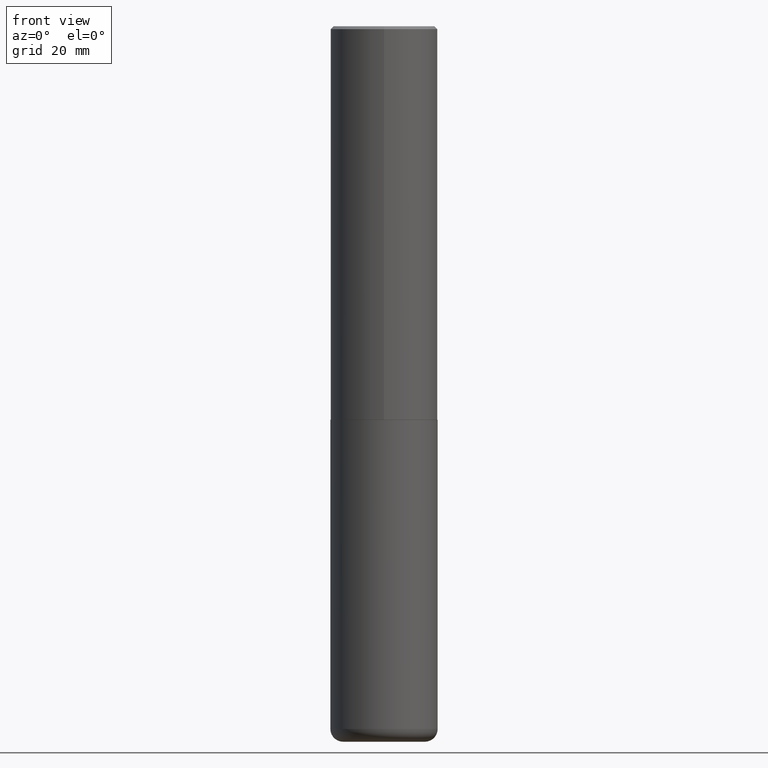
[diagram: clean part render]
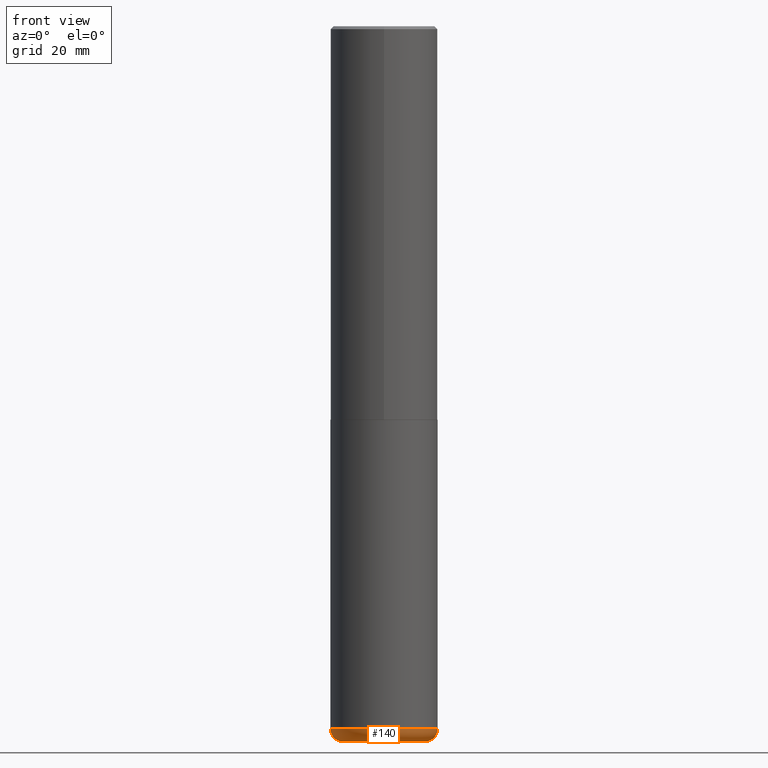
[diagram: same view with one face highlighted and labeled with its STEP entity id]
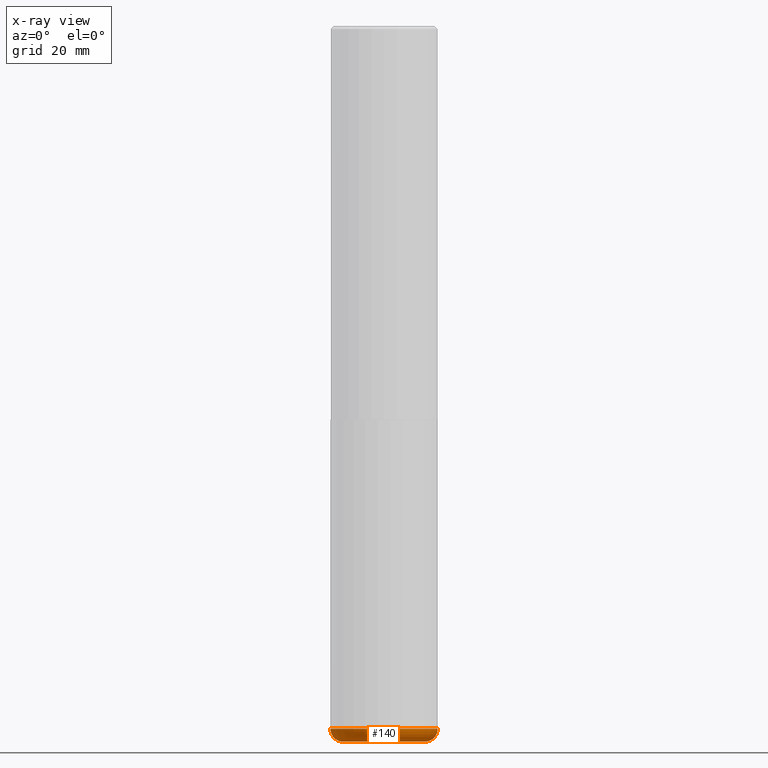
[diagram: x-ray of the same camera — body ghosted, the highlighted face saturated]
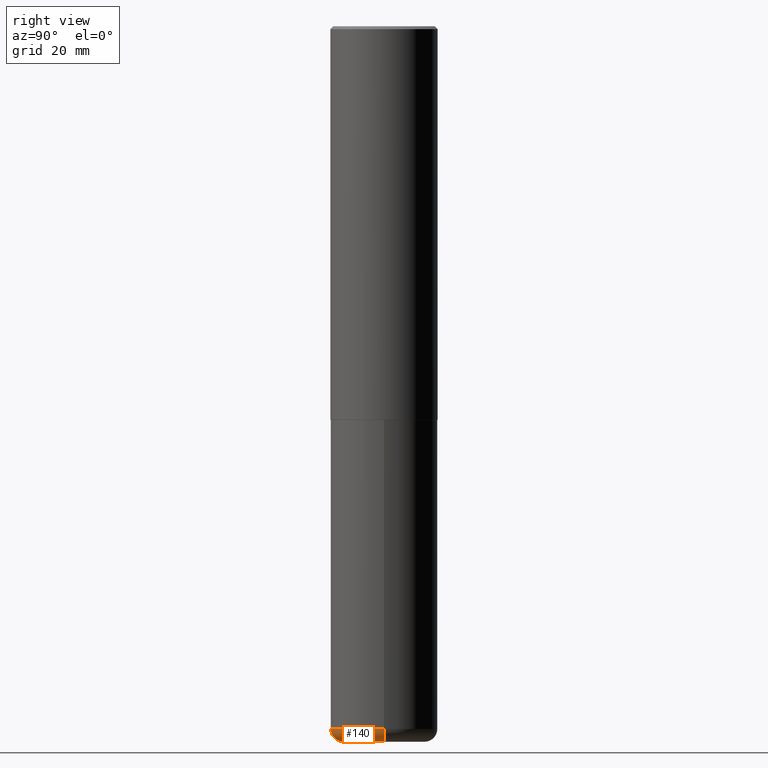
[diagram: same view with one face highlighted and labeled with its STEP entity id]
A machine part, front view. The second image highlights one B-rep face of the part: STEP entity #140.
The next image is the same camera in x-ray: the body ghosted, the highlighted face saturated — about 0% of this face is hidden behind the body in this view.
A second angle (right view) of the same face is appended — the face is thin or edge-on in the first view.
In plain terms, the highlighted toroidal blend (fillet) surface has major radius 7.239 mm and minor (blend) radius 2.286 mm.
Its self-contained STEP definition (entity closure, byte-faithful):
#5 = VERTEX_POINT ( 'NONE', #277 ) ;
#18 = CIRCLE ( 'NONE', #185, 0.08999999999999992728 ) ;
#30 = AXIS2_PLACEMENT_3D ( 'NONE', #300, #301, #204 ) ;
#38 = DIRECTION ( 'NONE',  ( 1.000000000000000000, -6.982962677686269077E-15, 4.883557194083113462E-29 ) ) ;
#39 = CARTESIAN_POINT ( 'NONE',  ( 0.3749999999999999445, -1.976178437785219664E-14, -4.910000000000000142 ) ) ;
#66 = DIRECTION ( 'NONE',  ( -6.982962677686266711E-15, -1.000000000000000000, 3.491481338843145583E-15 ) ) ;
#70 = CIRCLE ( 'NONE', #402, 0.3749999999999999445 ) ;
#109 = CIRCLE ( 'NONE', #272, 0.08999999999999992728 ) ;
#124 = VERTEX_POINT ( 'NONE', #370 ) ;
#140 = ADVANCED_FACE ( 'NONE', ( #194 ), #396, .T. ) ;
#157 = ORIENTED_EDGE ( 'NONE', *, *, #405, .F. ) ;
#170 = DIRECTION ( 'NONE',  ( 7.105427357601001859E-15, 1.000000000000000000, -3.491481338843145583E-15 ) ) ;
#175 = CARTESIAN_POINT ( 'NONE',  ( 1.200725183836902132E-28, -1.714317337371984662E-14, -4.910000000000000142 ) ) ;
#185 = AXIS2_PLACEMENT_3D ( 'NONE', #190, #66, #323 ) ;
#189 = ORIENTED_EDGE ( 'NONE', *, *, #235, .T. ) ;
#190 = CARTESIAN_POINT ( 'NONE',  ( 0.2850000000000000311, -1.913331773686043011E-14, -4.910000000000000142 ) ) ;
#191 = DIRECTION ( 'NONE',  ( -2.445468806185136597E-29, 3.491481338843145583E-15, 1.000000000000000000 ) ) ;
#193 = CIRCLE ( 'NONE', #30, 0.2850000000000000311 ) ;
#194 = FACE_OUTER_BOUND ( 'NONE', #231, .T. ) ;
#200 = EDGE_CURVE ( 'NONE', #124, #321, #18, .T. ) ;
#204 = DIRECTION ( 'NONE',  ( 1.000000000000000000, -6.982962677686266711E-15, 0.000000000000000000 ) ) ;
#221 = CARTESIAN_POINT ( 'NONE',  ( -0.3749999999999999445, -1.447863811461947092E-14, -4.910000000000000142 ) ) ;
#231 = EDGE_LOOP ( 'NONE', ( #258, #189, #253, #157 ) ) ;
#235 = EDGE_CURVE ( 'NONE', #5, #124, #193, .T. ) ;
#253 = ORIENTED_EDGE ( 'NONE', *, *, #200, .T. ) ;
#258 = ORIENTED_EDGE ( 'NONE', *, *, #296, .F. ) ;
#272 = AXIS2_PLACEMENT_3D ( 'NONE', #297, #170, #329 ) ;
#276 = DIRECTION ( 'NONE',  ( 1.000000000000000000, -6.982962677686269077E-15, 0.000000000000000000 ) ) ;
#277 = CARTESIAN_POINT ( 'NONE',  ( -0.2850000000000000311, -1.495549900595945556E-14, -5.000000000000000000 ) ) ;
#296 = EDGE_CURVE ( 'NONE', #5, #373, #109, .T. ) ;
#297 = CARTESIAN_POINT ( 'NONE',  ( -0.2850000000000000311, -1.511812657680356008E-14, -4.910000000000000142 ) ) ;
#300 = CARTESIAN_POINT ( 'NONE',  ( 1.222734403092568523E-28, -1.745740669421572989E-14, -5.000000000000000000 ) ) ;
#301 = DIRECTION ( 'NONE',  ( -2.445468806185136597E-29, 3.491481338843145583E-15, 1.000000000000000000 ) ) ;
#306 = DIRECTION ( 'NONE',  ( -2.445468806185136597E-29, 3.491481338843145583E-15, 1.000000000000000000 ) ) ;
#321 = VERTEX_POINT ( 'NONE', #39 ) ;
#323 = DIRECTION ( 'NONE',  ( 1.000000000000000000, -6.982962677686273810E-15, 0.000000000000000000 ) ) ;
#325 = AXIS2_PLACEMENT_3D ( 'NONE', #357, #191, #38 ) ;
#329 = DIRECTION ( 'NONE',  ( -1.000000000000000000, 7.105427357600996337E-15, 0.000000000000000000 ) ) ;
#357 = CARTESIAN_POINT ( 'NONE',  ( 1.200725183836902132E-28, -1.714317337371984662E-14, -4.910000000000000142 ) ) ;
#370 = CARTESIAN_POINT ( 'NONE',  ( 0.2850000000000000311, -1.944755105735631653E-14, -5.000000000000000000 ) ) ;
#373 = VERTEX_POINT ( 'NONE', #221 ) ;
#396 = TOROIDAL_SURFACE ( 'NONE', #325, 0.2850000000000000311, 0.08999999999999989952 ) ;
#402 = AXIS2_PLACEMENT_3D ( 'NONE', #175, #306, #276 ) ;
#405 = EDGE_CURVE ( 'NONE', #373, #321, #70, .T. ) ;